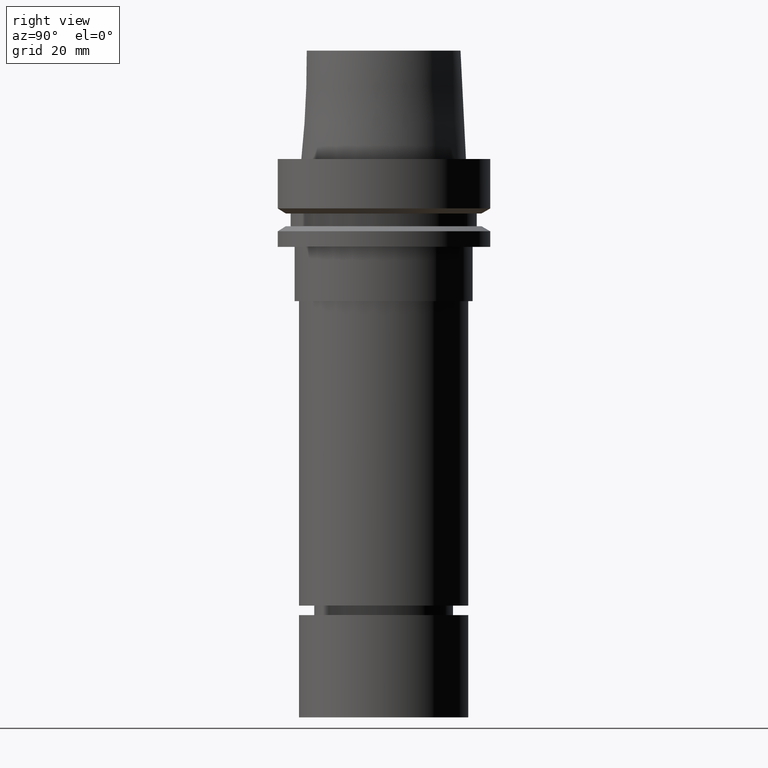
[diagram: clean part render]
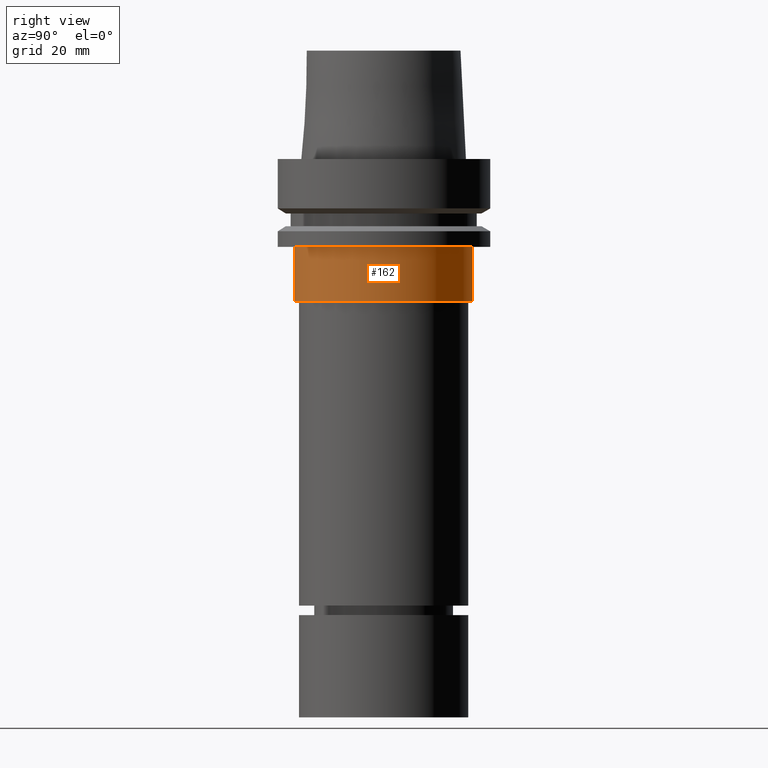
[diagram: same view with one face highlighted and labeled with its STEP entity id]
A machine part, right view. The second image highlights one B-rep face of the part: STEP entity #162.
In plain terms, the highlighted cylindrical surface (bore or boss wall) has radius 26.3 mm, axis along (-0, -0, 1).
Its self-contained STEP definition (entity closure, byte-faithful):
#127=EDGE_CURVE('Unnamed[1]',#288,#288,#289,.T.);
#150=EDGE_CURVE('Unnamed[1]',#325,#325,#326,.T.);
#162=ADVANCED_FACE('Unnamed[1]',(#342,#343),#344,.T.);
#288=VERTEX_POINT('',#497);
#289=CIRCLE('',#498,26.3);
#325=VERTEX_POINT('',#543);
#326=CIRCLE('',#544,26.3);
#342=FACE_BOUND('',#565,.T.);
#343=FACE_BOUND('',#566,.T.);
#344=CYLINDRICAL_SURFACE('',#567,26.3);
#497=CARTESIAN_POINT('',(2.57175827820944E-015,26.3,-42.0));
#498=AXIS2_PLACEMENT_3D('',#712,#713,#714);
#543=CARTESIAN_POINT('',(1.59204083889154E-015,26.3,-25.9999999999997));
#544=AXIS2_PLACEMENT_3D('',#754,#755,#756);
#565=EDGE_LOOP('',(#772));
#566=EDGE_LOOP('',(#773));
#567=AXIS2_PLACEMENT_3D('',#774,#775,#776);
#712=CARTESIAN_POINT('',(2.57175827820944E-015,5.14351655641888E-015,-42.0));
#713=DIRECTION('',(-6.12323399573677E-017,-1.22464679914735E-016,1.0));
#714=DIRECTION('',(-1.23259516440783E-032,1.0,1.22464679914735E-016));
#754=CARTESIAN_POINT('',(1.59204083889154E-015,3.18408167778308E-015,-25.9999999999997));
#755=DIRECTION('',(-6.12323399573677E-017,-1.22464679914735E-016,1.0));
#756=DIRECTION('',(-1.23259516440783E-032,1.0,1.22464679914735E-016));
#772=ORIENTED_EDGE('',*,*,#150,.F.);
#773=ORIENTED_EDGE('',*,*,#127,.T.);
#774=CARTESIAN_POINT('',(2.08189955855049E-015,4.16379911710098E-015,-33.9999999999998));
#775=DIRECTION('',(-6.12323399573677E-017,-1.22464679914735E-016,1.0));
#776=DIRECTION('',(-1.23259516440783E-032,1.0,1.22464679914735E-016));